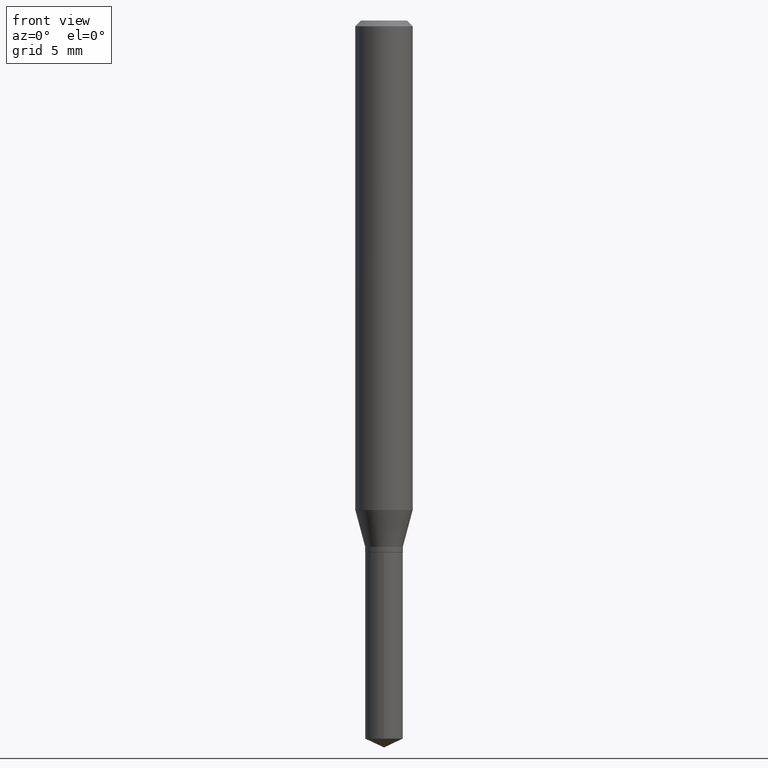
[diagram: clean part render]
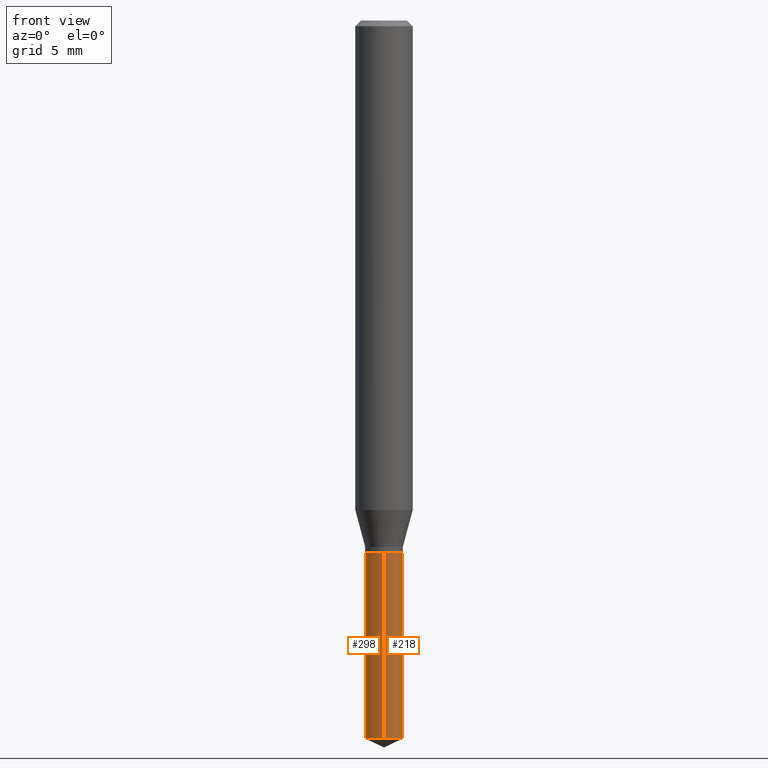
[diagram: same view with one multi-face feature highlighted, each face labeled with its STEP entity id]
A machine part, front view. The highlighted faces form ONE feature: a constant-radius fillet chain: 2 tangent blend faces with common blend radius 0.9855 mm. The faces share edges in the B-rep.
Their STEP definitions:
[1] entity #298 (Cylinder):
#2 = ORIENTED_EDGE ( 'NONE', *, *, #401, .F. ) ;
#4 = FACE_OUTER_BOUND ( 'NONE', #122, .T. ) ;
#11 = DIRECTION ( 'NONE',  ( -2.445458899330790108E-29, 3.491495526022433205E-15, 1.000000000000000000 ) ) ;
#12 = DIRECTION ( 'NONE',  ( -6.982962677686265922E-15, -1.000000000000000000, 3.520422672247761757E-15 ) ) ;
#15 = CIRCLE ( 'NONE', #239, 0.03880000000000000115 ) ;
#20 = DIRECTION ( 'NONE',  ( -6.982962677686265922E-15, -1.000000000000000000, 3.520422672247761757E-15 ) ) ;
#26 = VECTOR ( 'NONE', #182, 39.37007874015748143 ) ;
#29 = CARTESIAN_POINT ( 'NONE',  ( -2.709389518942003441E-16, -0.03880000000000382449, -1.094499999999999806 ) ) ;
#35 = CARTESIAN_POINT ( 'NONE',  ( 3.614416857297380941E-29, -5.160440217849142988E-15, -1.478007262863586080 ) ) ;
#53 = AXIS2_PLACEMENT_3D ( 'NONE', #237, #11, #12 ) ;
#54 = CARTESIAN_POINT ( 'NONE',  ( 2.676565608369631794E-29, -3.821426325363822773E-15, -1.094499999999999806 ) ) ;
#91 = VERTEX_POINT ( 'NONE', #152 ) ;
#96 = DIRECTION ( 'NONE',  ( -2.445458899330790108E-29, 3.491495526022433205E-15, 1.000000000000000000 ) ) ;
#98 = ORIENTED_EDGE ( 'NONE', *, *, #391, .T. ) ;
#107 = EDGE_CURVE ( 'NONE', #91, #220, #137, .T. ) ;
#116 = VERTEX_POINT ( 'NONE', #29 ) ;
#122 = EDGE_LOOP ( 'NONE', ( #321, #267, #98, #2 ) ) ;
#137 = LINE ( 'NONE', #246, #440 ) ;
#152 = CARTESIAN_POINT ( 'NONE',  ( 2.756905814749549707E-16, 0.03879999999999483862, -1.478007262863586302 ) ) ;
#182 = DIRECTION ( 'NONE',  ( -2.445458899330790108E-29, 3.491495526022433599E-15, 1.000000000000000000 ) ) ;
#191 = EDGE_CURVE ( 'NONE', #91, #344, #434, .T. ) ;
#215 = AXIS2_PLACEMENT_3D ( 'NONE', #35, #455, #259 ) ;
#220 = VERTEX_POINT ( 'NONE', #235 ) ;
#235 = CARTESIAN_POINT ( 'NONE',  ( 2.756905814749549707E-16, 0.03879999999999617089, -1.094500000000000028 ) ) ;
#237 = CARTESIAN_POINT ( 'NONE',  ( 2.676565608369631794E-29, -3.821426325363822773E-15, -1.094499999999999806 ) ) ;
#239 = AXIS2_PLACEMENT_3D ( 'NONE', #54, #96, #20 ) ;
#246 = CARTESIAN_POINT ( 'NONE',  ( 2.756905814749455537E-16, 0.03879999999999617089, -1.094500000000000028 ) ) ;
#259 = DIRECTION ( 'NONE',  ( -6.982962677686265922E-15, -1.000000000000000000, 0.000000000000000000 ) ) ;
#267 = ORIENTED_EDGE ( 'NONE', *, *, #191, .T. ) ;
#290 = LINE ( 'NONE', #445, #26 ) ;
#297 = DIRECTION ( 'NONE',  ( -2.445458899330790108E-29, 3.491495526022433599E-15, 1.000000000000000000 ) ) ;
#298 = ADVANCED_FACE ( 'NONE', ( #4 ), #430, .T. ) ;
#321 = ORIENTED_EDGE ( 'NONE', *, *, #107, .F. ) ;
#344 = VERTEX_POINT ( 'NONE', #353 ) ;
#353 = CARTESIAN_POINT ( 'NONE',  ( -2.709389518941908777E-16, -0.03880000000000514288, -1.478007262863586080 ) ) ;
#391 = EDGE_CURVE ( 'NONE', #344, #116, #290, .T. ) ;
#401 = EDGE_CURVE ( 'NONE', #220, #116, #15, .T. ) ;
#430 = CYLINDRICAL_SURFACE ( 'NONE', #53, 0.03880000000000000115 ) ;
#434 = CIRCLE ( 'NONE', #215, 0.03880000000000000115 ) ;
#440 = VECTOR ( 'NONE', #297, 39.37007874015748143 ) ;
#445 = CARTESIAN_POINT ( 'NONE',  ( -2.709389518942003441E-16, -0.03880000000000382449, -1.094499999999999806 ) ) ;
#455 = DIRECTION ( 'NONE',  ( -2.445458899330790108E-29, 3.491495526022433205E-15, 1.000000000000000000 ) ) ;
[2] entity #218 (Cylinder):
#10 = AXIS2_PLACEMENT_3D ( 'NONE', #343, #462, #77 ) ;
#26 = VECTOR ( 'NONE', #182, 39.37007874015748143 ) ;
#29 = CARTESIAN_POINT ( 'NONE',  ( -2.709389518942003441E-16, -0.03880000000000382449, -1.094499999999999806 ) ) ;
#45 = CYLINDRICAL_SURFACE ( 'NONE', #10, 0.03880000000000000115 ) ;
#77 = DIRECTION ( 'NONE',  ( -6.982962677686265922E-15, -1.000000000000000000, 3.520422672247761757E-15 ) ) ;
#91 = VERTEX_POINT ( 'NONE', #152 ) ;
#107 = EDGE_CURVE ( 'NONE', #91, #220, #137, .T. ) ;
#116 = VERTEX_POINT ( 'NONE', #29 ) ;
#127 = DIRECTION ( 'NONE',  ( -6.982962677686265922E-15, -1.000000000000000000, 0.000000000000000000 ) ) ;
#137 = LINE ( 'NONE', #246, #440 ) ;
#152 = CARTESIAN_POINT ( 'NONE',  ( 2.756905814749549707E-16, 0.03879999999999483862, -1.478007262863586302 ) ) ;
#182 = DIRECTION ( 'NONE',  ( -2.445458899330790108E-29, 3.491495526022433599E-15, 1.000000000000000000 ) ) ;
#194 = AXIS2_PLACEMENT_3D ( 'NONE', #351, #273, #279 ) ;
#218 = ADVANCED_FACE ( 'NONE', ( #314 ), #45, .T. ) ;
#219 = ORIENTED_EDGE ( 'NONE', *, *, #285, .T. ) ;
#220 = VERTEX_POINT ( 'NONE', #235 ) ;
#235 = CARTESIAN_POINT ( 'NONE',  ( 2.756905814749549707E-16, 0.03879999999999617089, -1.094500000000000028 ) ) ;
#246 = CARTESIAN_POINT ( 'NONE',  ( 2.756905814749455537E-16, 0.03879999999999617089, -1.094500000000000028 ) ) ;
#247 = CIRCLE ( 'NONE', #415, 0.03880000000000000115 ) ;
#250 = ORIENTED_EDGE ( 'NONE', *, *, #262, .F. ) ;
#262 = EDGE_CURVE ( 'NONE', #116, #220, #324, .T. ) ;
#273 = DIRECTION ( 'NONE',  ( -2.445458899330790108E-29, 3.491495526022433205E-15, 1.000000000000000000 ) ) ;
#279 = DIRECTION ( 'NONE',  ( -6.982962677686265922E-15, -1.000000000000000000, 3.520422672247761757E-15 ) ) ;
#285 = EDGE_CURVE ( 'NONE', #344, #91, #247, .T. ) ;
#290 = LINE ( 'NONE', #445, #26 ) ;
#297 = DIRECTION ( 'NONE',  ( -2.445458899330790108E-29, 3.491495526022433599E-15, 1.000000000000000000 ) ) ;
#314 = FACE_OUTER_BOUND ( 'NONE', #330, .T. ) ;
#324 = CIRCLE ( 'NONE', #194, 0.03880000000000000115 ) ;
#330 = EDGE_LOOP ( 'NONE', ( #219, #384, #250, #371 ) ) ;
#343 = CARTESIAN_POINT ( 'NONE',  ( 2.676565608369631794E-29, -3.821426325363822773E-15, -1.094499999999999806 ) ) ;
#344 = VERTEX_POINT ( 'NONE', #353 ) ;
#351 = CARTESIAN_POINT ( 'NONE',  ( 2.676565608369631794E-29, -3.821426325363822773E-15, -1.094499999999999806 ) ) ;
#353 = CARTESIAN_POINT ( 'NONE',  ( -2.709389518941908777E-16, -0.03880000000000514288, -1.478007262863586080 ) ) ;
#371 = ORIENTED_EDGE ( 'NONE', *, *, #391, .F. ) ;
#383 = DIRECTION ( 'NONE',  ( -2.445458899330790108E-29, 3.491495526022433205E-15, 1.000000000000000000 ) ) ;
#384 = ORIENTED_EDGE ( 'NONE', *, *, #107, .T. ) ;
#391 = EDGE_CURVE ( 'NONE', #344, #116, #290, .T. ) ;
#415 = AXIS2_PLACEMENT_3D ( 'NONE', #466, #383, #127 ) ;
#440 = VECTOR ( 'NONE', #297, 39.37007874015748143 ) ;
#445 = CARTESIAN_POINT ( 'NONE',  ( -2.709389518942003441E-16, -0.03880000000000382449, -1.094499999999999806 ) ) ;
#462 = DIRECTION ( 'NONE',  ( -2.445458899330790108E-29, 3.491495526022433205E-15, 1.000000000000000000 ) ) ;
#466 = CARTESIAN_POINT ( 'NONE',  ( 3.614416857297380941E-29, -5.160440217849142988E-15, -1.478007262863586080 ) ) ;